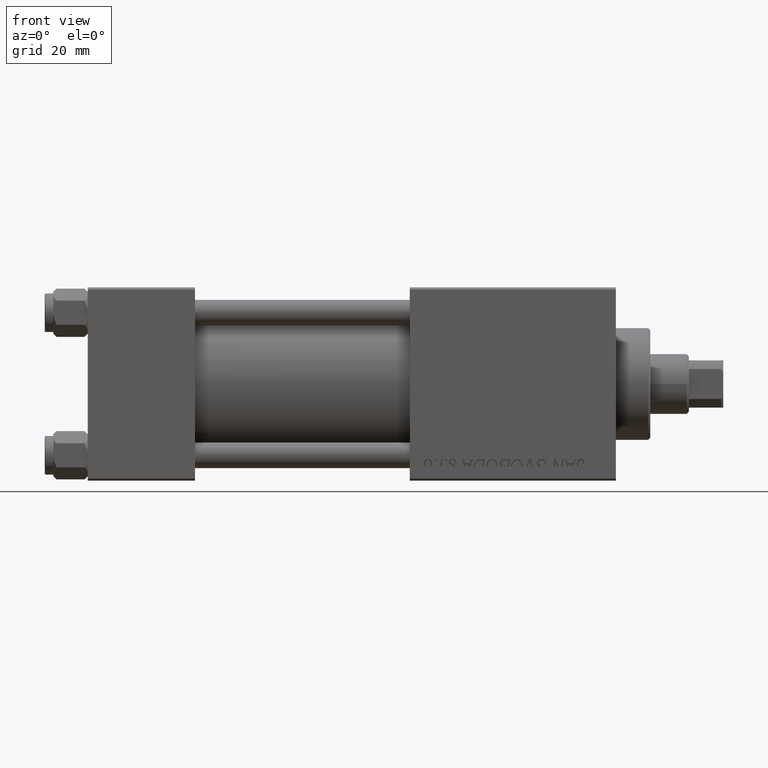
[diagram: clean part render]
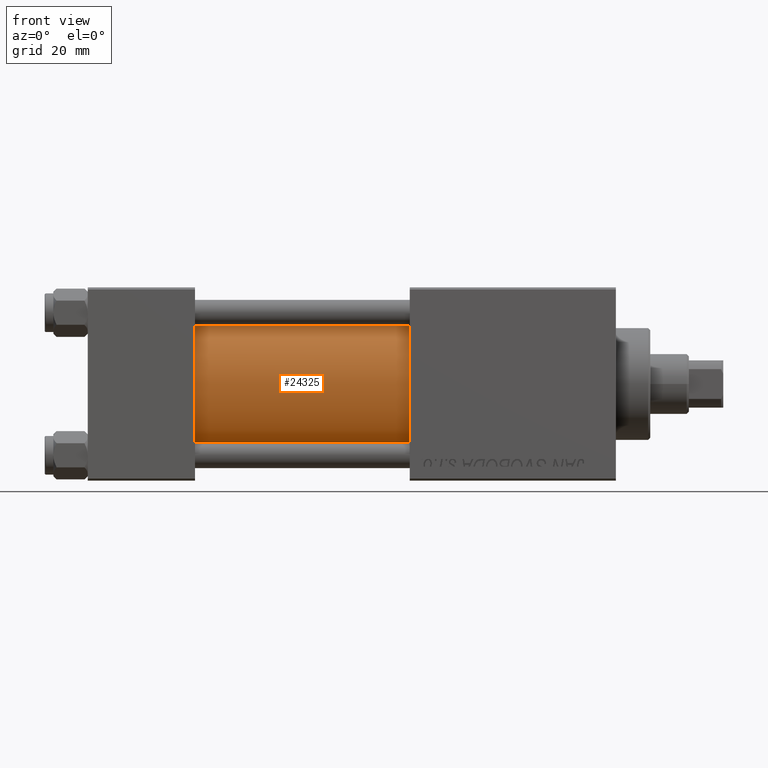
[diagram: same view with one face highlighted and labeled with its STEP entity id]
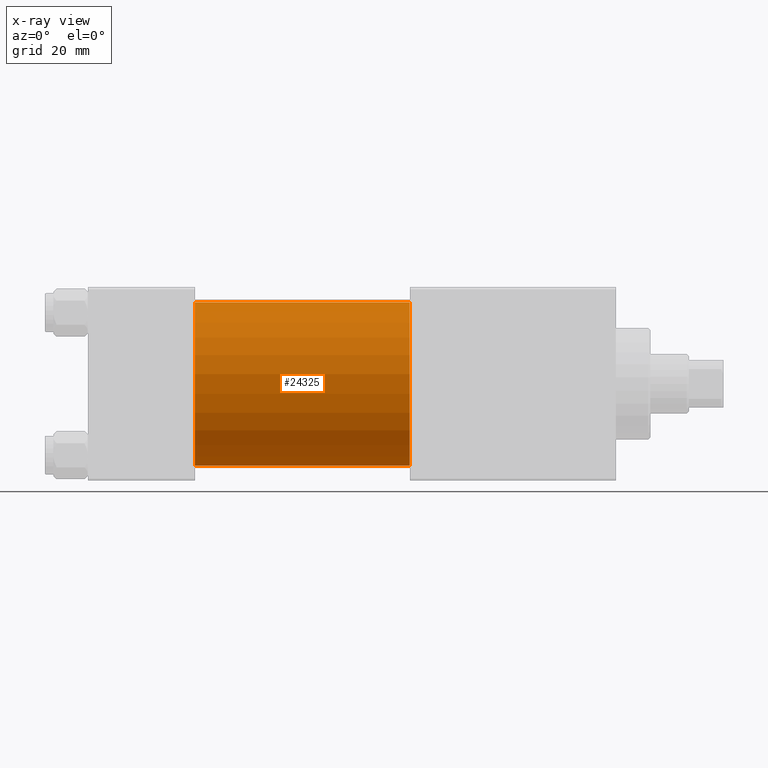
[diagram: x-ray of the same camera — body ghosted, the highlighted face saturated]
A machine part, front view. The second image highlights one B-rep face of the part: STEP entity #24325.
The next image is the same camera in x-ray: the body ghosted, the highlighted face saturated — about 0% of this face is hidden behind the body in this view.
In plain terms, the highlighted cylindrical surface (partial cylindrical patch) has radius 19 mm, axis along (-1, -0, -0).
Its self-contained STEP definition (entity closure, byte-faithful):
#1808 = CARTESIAN_POINT ( 'NONE',  ( 25.00000000000000000, -2.602085213965210642E-15, 0.000000000000000000 ) ) ;
#2218 = CARTESIAN_POINT ( 'NONE',  ( 75.00000000000001421, -2.602085213965210642E-15, 19.00000000000000000 ) ) ;
#2229 = DIRECTION ( 'NONE',  ( -1.000000000000000000, -0.000000000000000000, -0.000000000000000000 ) ) ;
#3441 = AXIS2_PLACEMENT_3D ( 'NONE', #1808, #31606, #27792 ) ;
#3539 = CARTESIAN_POINT ( 'NONE',  ( 75.00000000000001421, -2.752562955852396712E-16, -19.00000000000000000 ) ) ;
#4037 = ORIENTED_EDGE ( 'NONE', *, *, #35033, .F. ) ;
#6180 = ORIENTED_EDGE ( 'NONE', *, *, #25166, .T. ) ;
#6657 = CARTESIAN_POINT ( 'NONE',  ( 25.00000000000000000, -2.752562955852396712E-16, -19.00000000000000000 ) ) ;
#7054 = CARTESIAN_POINT ( 'NONE',  ( 75.00000000000001421, -2.752562955852396712E-16, -19.00000000000000000 ) ) ;
#7438 = VERTEX_POINT ( 'NONE', #6657 ) ;
#8047 = DIRECTION ( 'NONE',  ( 1.000000000000000000, 0.000000000000000000, 0.000000000000000000 ) ) ;
#8327 = VERTEX_POINT ( 'NONE', #3539 ) ;
#10898 = ORIENTED_EDGE ( 'NONE', *, *, #34366, .F. ) ;
#11329 = VERTEX_POINT ( 'NONE', #32931 ) ;
#13495 = VECTOR ( 'NONE', #2229, 1000.000000000000000 ) ;
#14658 = FACE_OUTER_BOUND ( 'NONE', #25778, .T. ) ;
#15941 = AXIS2_PLACEMENT_3D ( 'NONE', #19502, #8047, #35020 ) ;
#19502 = CARTESIAN_POINT ( 'NONE',  ( 75.00000000000001421, -2.602085213965210642E-15, 0.000000000000000000 ) ) ;
#24325 = ADVANCED_FACE ( 'NONE', ( #14658 ), #49536, .T. ) ;
#25166 = EDGE_CURVE ( 'NONE', #32911, #7438, #39223, .T. ) ;
#25778 = EDGE_LOOP ( 'NONE', ( #4037, #10898, #48210, #6180 ) ) ;
#26124 = DIRECTION ( 'NONE',  ( -1.000000000000000000, -0.000000000000000000, -0.000000000000000000 ) ) ;
#27792 = DIRECTION ( 'NONE',  ( 0.000000000000000000, 0.000000000000000000, 1.000000000000000000 ) ) ;
#31606 = DIRECTION ( 'NONE',  ( 1.000000000000000000, -0.000000000000000000, 0.000000000000000000 ) ) ;
#32911 = VERTEX_POINT ( 'NONE', #35066 ) ;
#32931 = CARTESIAN_POINT ( 'NONE',  ( 75.00000000000001421, -2.602085213965210642E-15, 19.00000000000000000 ) ) ;
#34247 = CARTESIAN_POINT ( 'NONE',  ( 75.00000000000001421, -2.602085213965210642E-15, 0.000000000000000000 ) ) ;
#34366 = EDGE_CURVE ( 'NONE', #11329, #8327, #48334, .T. ) ;
#34512 = DIRECTION ( 'NONE',  ( -1.000000000000000000, -0.000000000000000000, -0.000000000000000000 ) ) ;
#35020 = DIRECTION ( 'NONE',  ( 0.000000000000000000, 0.000000000000000000, -1.000000000000000000 ) ) ;
#35033 = EDGE_CURVE ( 'NONE', #8327, #7438, #41923, .T. ) ;
#35066 = CARTESIAN_POINT ( 'NONE',  ( 25.00000000000000000, -2.602085213965210642E-15, 19.00000000000000000 ) ) ;
#37074 = LINE ( 'NONE', #2218, #42520 ) ;
#39223 = CIRCLE ( 'NONE', #3441, 19.00000000000000000 ) ;
#41377 = DIRECTION ( 'NONE',  ( 0.000000000000000000, 0.000000000000000000, 1.000000000000000000 ) ) ;
#41923 = LINE ( 'NONE', #7054, #13495 ) ;
#42520 = VECTOR ( 'NONE', #26124, 1000.000000000000000 ) ;
#44053 = AXIS2_PLACEMENT_3D ( 'NONE', #34247, #34512, #41377 ) ;
#48210 = ORIENTED_EDGE ( 'NONE', *, *, #50179, .T. ) ;
#48334 = CIRCLE ( 'NONE', #15941, 19.00000000000000000 ) ;
#49536 = CYLINDRICAL_SURFACE ( 'NONE', #44053, 19.00000000000000000 ) ;
#50179 = EDGE_CURVE ( 'NONE', #11329, #32911, #37074, .T. ) ;